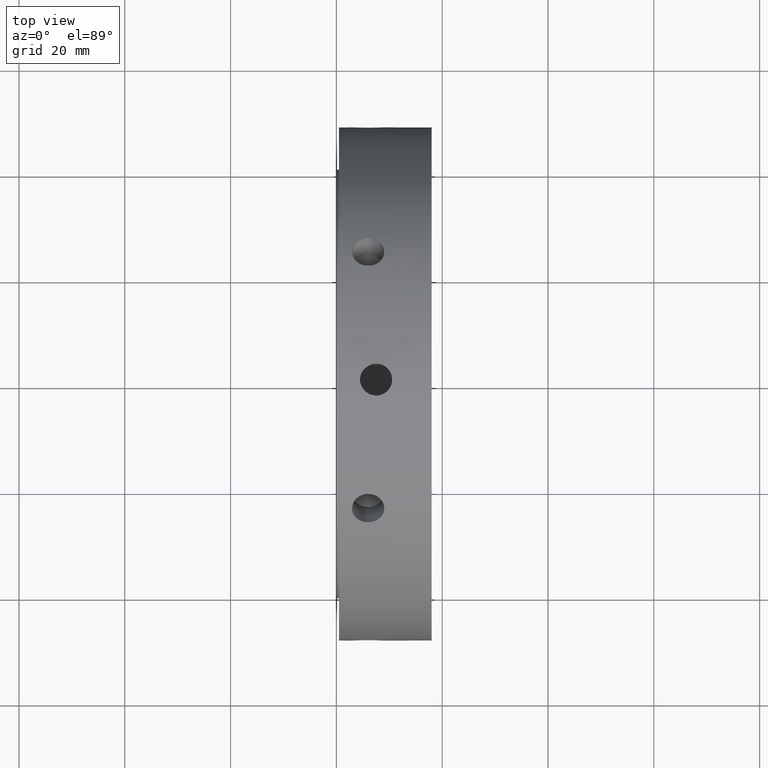
[diagram: clean part render]
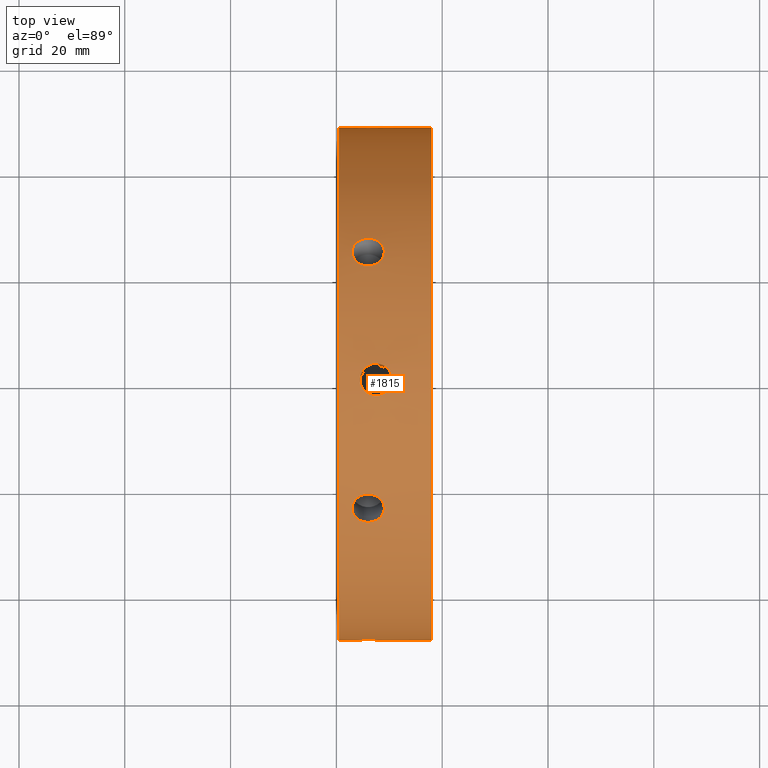
[diagram: same view with one face highlighted and labeled with its STEP entity id]
A machine part, top view. The second image highlights one B-rep face of the part: STEP entity #1815.
In plain terms, the highlighted cylindrical surface (bore or boss wall) has radius 48.5 mm, axis along (1, 0, 0).
Its self-contained STEP definition (entity closure, byte-faithful):
#534=CARTESIAN_POINT('',(2.94999999999999,24.250000000000046,42.002232083545266));
#535=VERTEX_POINT('',#534);
#536=CARTESIAN_POINT('',(9.04999999999999,24.250000000000043,42.002232083545266));
#537=VERTEX_POINT('',#536);
#538=CARTESIAN_POINT('',(2.94999999999999,24.250000000000036,42.002232083545259));
#539=CARTESIAN_POINT('',(2.94999999999999,24.581751072560817,41.810695512498341));
#540=CARTESIAN_POINT('',(3.026577941669006,24.933053119208232,41.602092551934646));
#541=CARTESIAN_POINT('',(3.337873122273323,25.574762695680938,41.210711660996324));
#542=CARTESIAN_POINT('',(3.57258477041999,25.86530674519242,41.028153164711298));
#543=CARTESIAN_POINT('',(4.114064007653622,26.322190474943483,40.736540523324436));
#544=CARTESIAN_POINT('',(4.456961719330098,26.519036951920292,40.608065545296832));
#545=CARTESIAN_POINT('',(5.208388751582146,26.77956822937724,40.436728770736636));
#546=CARTESIAN_POINT('',(5.616926655132631,26.843378948363458,40.394096185390239));
#547=CARTESIAN_POINT('',(6.383073344867347,26.843378948363458,40.394096185390239));
#548=CARTESIAN_POINT('',(6.791611248417835,26.779568229377237,40.436728770736636));
#549=CARTESIAN_POINT('',(7.543038280669883,26.519036951920288,40.608065545296832));
#550=CARTESIAN_POINT('',(7.885935992346358,26.322190474943483,40.736540523324436));
#551=CARTESIAN_POINT('',(8.427415229579989,25.86530674519242,41.028153164711298));
#552=CARTESIAN_POINT('',(8.66212687772666,25.574762695680938,41.210711660996324));
#553=CARTESIAN_POINT('',(8.973422058330975,24.933053119208232,41.602092551934646));
#554=CARTESIAN_POINT('',(9.049999999999992,24.581751072560817,41.810695512498341));
#555=CARTESIAN_POINT('',(9.04999999999999,24.250000000000028,42.002232083545259));
#556=B_SPLINE_CURVE_WITH_KNOTS('',3,(#538,#539,#540,#541,#542,#543,#544,#545,#546,#547,#548,#549,#550,#551,#552,#553,#554,#555),.UNSPECIFIED.,.F.,.U.,(4,2,2,2,2,2,2,2,4),(0.459687892176714,0.574609834804864,0.689531777433014,0.804453780893222,0.919375784353429,1.034297787813637,1.149219791273844,1.264141733901994,1.379063676530144),.UNSPECIFIED.);
#557=EDGE_CURVE('',#535,#537,#556,.T.);
#559=CARTESIAN_POINT('',(9.04999999999999,24.250000000000036,42.002232083545259));
#560=CARTESIAN_POINT('',(9.049999999999988,23.918248927439258,42.193768654592176));
#561=CARTESIAN_POINT('',(8.973422058330975,23.561942440962753,42.39370367110844));
#562=CARTESIAN_POINT('',(8.66212687772666,22.902141858618023,42.753750020716396));
#563=CARTESIAN_POINT('',(8.427415229579992,22.598769538402756,42.914089300369227));
#564=CARTESIAN_POINT('',(7.885935992346362,22.117783718021528,43.163955896216009));
#565=CARTESIAN_POINT('',(7.543038280669885,21.908097884810573,43.270192456909591));
#566=CARTESIAN_POINT('',(6.791611248417839,21.629450246710469,43.410150774387617));
#567=CARTESIAN_POINT('',(6.383073344867349,21.560623985278387,43.444096185390237));
#568=CARTESIAN_POINT('',(5.999999999999989,21.560623985278387,43.444096185390237));
#569=CARTESIAN_POINT('',(5.616926655132631,21.560623985278387,43.444096185390237));
#570=CARTESIAN_POINT('',(5.208388751582143,21.629450246710469,43.410150774387617));
#571=CARTESIAN_POINT('',(4.456961719330095,21.908097884810573,43.270192456909591));
#572=CARTESIAN_POINT('',(4.114064007653619,22.117783718021535,43.163955896216009));
#573=CARTESIAN_POINT('',(3.572584770419988,22.598769538402756,42.914089300369227));
#574=CARTESIAN_POINT('',(3.33787312227332,22.902141858618023,42.753750020716396));
#575=CARTESIAN_POINT('',(3.026577941669004,23.561942440962753,42.39370367110844));
#576=CARTESIAN_POINT('',(2.94999999999999,23.918248927439258,42.193768654592176));
#577=CARTESIAN_POINT('',(2.94999999999999,24.250000000000039,42.002232083545259));
#578=B_SPLINE_CURVE_WITH_KNOTS('',3,(#559,#560,#561,#562,#563,#564,#565,#566,#567,#568,#569,#570,#571,#572,#573,#574,#575,#576,#577),.UNSPECIFIED.,.F.,.U.,(4,2,2,2,3,2,2,2,4),(1.379063676530144,1.493985619158293,1.608907561786443,1.72382956524665,1.838751568706858,1.953673572167066,2.068595575627273,2.183517518255423,2.298439460883572),.UNSPECIFIED.);
#579=EDGE_CURVE('',#537,#535,#578,.T.);
#646=CARTESIAN_POINT('',(2.94999999999999,48.500000000000014,-3.230749E-014));
#647=VERTEX_POINT('',#646);
#648=CARTESIAN_POINT('',(9.04999999999999,48.500000000000014,-2.664535E-014));
#649=VERTEX_POINT('',#648);
#650=CARTESIAN_POINT('',(2.94999999999999,48.500000000000007,-2.615963E-014));
#651=CARTESIAN_POINT('',(2.94999999999999,48.500000000000007,-0.383073142093859));
#652=CARTESIAN_POINT('',(3.026577941669004,48.494995560170892,-0.79161111917382));
#653=CARTESIAN_POINT('',(3.337873122273319,48.476904554298869,-1.543038359720101));
#654=CARTESIAN_POINT('',(3.572584770419987,48.464076283595091,-1.885936135657965));
#655=CARTESIAN_POINT('',(4.114064007653619,48.439974192964939,-2.427415372891596));
#656=CARTESIAN_POINT('',(4.456961719330096,48.427134836730772,-2.662126911612782));
#657=CARTESIAN_POINT('',(5.208388751582143,48.409018476087631,-2.973422003651018));
#658=CARTESIAN_POINT('',(5.61692665513263,48.404002933641763,-3.050000000000027));
#659=CARTESIAN_POINT('',(6.383073344867347,48.404002933641763,-3.050000000000027));
#660=CARTESIAN_POINT('',(6.791611248417835,48.409018476087631,-2.973422003651018));
#661=CARTESIAN_POINT('',(7.543038280669883,48.427134836730772,-2.662126911612783));
#662=CARTESIAN_POINT('',(7.88593599234636,48.439974192964939,-2.427415372891597));
#663=CARTESIAN_POINT('',(8.427415229579991,48.464076283595091,-1.885936135657965));
#664=CARTESIAN_POINT('',(8.66212687772666,48.476904554298869,-1.543038359720102));
#665=CARTESIAN_POINT('',(8.973422058330975,48.494995560170892,-0.791611119173822));
#666=CARTESIAN_POINT('',(9.04999999999999,48.500000000000007,-0.38307314209386));
#667=CARTESIAN_POINT('',(9.04999999999999,48.500000000000007,-2.726985E-014));
#668=B_SPLINE_CURVE_WITH_KNOTS('',3,(#650,#651,#652,#653,#654,#655,#656,#657,#658,#659,#660,#661,#662,#663,#664,#665,#666,#667),.UNSPECIFIED.,.F.,.U.,(4,2,2,2,2,2,2,2,4),(0.459687892176715,0.574609834804864,0.689531777433014,0.804453780893222,0.919375784353429,1.034297787813637,1.149219791273845,1.264141733901994,1.379063676530144),.UNSPECIFIED.);
#669=EDGE_CURVE('',#647,#649,#668,.T.);
#671=CARTESIAN_POINT('',(9.04999999999999,48.500000000000007,-2.713108E-014));
#672=CARTESIAN_POINT('',(9.04999999999999,48.500000000000007,0.383073142093806));
#673=CARTESIAN_POINT('',(8.973422058330975,48.494995560170892,0.791611119173767));
#674=CARTESIAN_POINT('',(8.66212687772666,48.476904554298869,1.543038359720049));
#675=CARTESIAN_POINT('',(8.427415229579991,48.464076283595091,1.885936135657912));
#676=CARTESIAN_POINT('',(7.88593599234636,48.439974192964939,2.427415372891542));
#677=CARTESIAN_POINT('',(7.543038280669884,48.427134836730787,2.662126911612728));
#678=CARTESIAN_POINT('',(6.791611248417837,48.409018476087638,2.973422003650964));
#679=CARTESIAN_POINT('',(6.383073344867349,48.404002933641763,3.049999999999973));
#680=CARTESIAN_POINT('',(5.999999999999989,48.404002933641763,3.049999999999973));
#681=CARTESIAN_POINT('',(5.61692665513263,48.404002933641763,3.049999999999973));
#682=CARTESIAN_POINT('',(5.208388751582143,48.409018476087638,2.973422003650963));
#683=CARTESIAN_POINT('',(4.456961719330097,48.427134836730787,2.662126911612728));
#684=CARTESIAN_POINT('',(4.114064007653621,48.439974192964939,2.427415372891544));
#685=CARTESIAN_POINT('',(3.572584770419989,48.464076283595091,1.885936135657913));
#686=CARTESIAN_POINT('',(3.33787312227332,48.476904554298869,1.543038359720049));
#687=CARTESIAN_POINT('',(3.026577941669004,48.494995560170892,0.791611119173768));
#688=CARTESIAN_POINT('',(2.94999999999999,48.500000000000007,0.383073142093806));
#689=CARTESIAN_POINT('',(2.94999999999999,48.500000000000007,-2.615963E-014));
#690=B_SPLINE_CURVE_WITH_KNOTS('',3,(#671,#672,#673,#674,#675,#676,#677,#678,#679,#680,#681,#682,#683,#684,#685,#686,#687,#688,#689),.UNSPECIFIED.,.F.,.U.,(4,2,2,2,3,2,2,2,4),(1.379063676530144,1.493985619158294,1.608907561786444,1.723829565246651,1.838751568706859,1.953673572167067,2.068595575627274,2.183517518255424,2.298439460883574),.UNSPECIFIED.);
#691=EDGE_CURVE('',#649,#647,#690,.T.);
#758=CARTESIAN_POINT('',(2.94999999999999,24.249999999999993,-42.002232083545294));
#759=VERTEX_POINT('',#758);
#760=CARTESIAN_POINT('',(9.04999999999999,24.25,-42.002232083545294));
#761=VERTEX_POINT('',#760);
#762=CARTESIAN_POINT('',(2.94999999999999,24.249999999999993,-42.002232083545287));
#763=CARTESIAN_POINT('',(2.94999999999999,23.918248927439201,-42.193768654592205));
#764=CARTESIAN_POINT('',(3.026577941669004,23.561942440962696,-42.393703671108469));
#765=CARTESIAN_POINT('',(3.337873122273316,22.902141858617973,-42.753750020716417));
#766=CARTESIAN_POINT('',(3.572584770419989,22.59876953840271,-42.914089300369263));
#767=CARTESIAN_POINT('',(4.114064007653619,22.117783718021485,-43.163955896216038));
#768=CARTESIAN_POINT('',(4.456961719330095,21.908097884810523,-43.270192456909612));
#769=CARTESIAN_POINT('',(5.20838875158214,21.629450246710423,-43.410150774387631));
#770=CARTESIAN_POINT('',(5.61692665513263,21.560623985278333,-43.444096185390265));
#771=CARTESIAN_POINT('',(6.383073344867349,21.560623985278333,-43.444096185390265));
#772=CARTESIAN_POINT('',(6.791611248417837,21.629450246710423,-43.410150774387631));
#773=CARTESIAN_POINT('',(7.543038280669884,21.908097884810523,-43.270192456909612));
#774=CARTESIAN_POINT('',(7.885935992346361,22.117783718021485,-43.163955896216038));
#775=CARTESIAN_POINT('',(8.427415229579991,22.59876953840271,-42.914089300369263));
#776=CARTESIAN_POINT('',(8.662126877726662,22.902141858617973,-42.753750020716417));
#777=CARTESIAN_POINT('',(8.973422058330975,23.561942440962696,-42.393703671108469));
#778=CARTESIAN_POINT('',(9.04999999999999,23.918248927439198,-42.193768654592205));
#779=CARTESIAN_POINT('',(9.04999999999999,24.249999999999986,-42.002232083545287));
#780=B_SPLINE_CURVE_WITH_KNOTS('',3,(#762,#763,#764,#765,#766,#767,#768,#769,#770,#771,#772,#773,#774,#775,#776,#777,#778,#779),.UNSPECIFIED.,.F.,.U.,(4,2,2,2,2,2,2,2,4),(0.459687892176714,0.574609834804864,0.689531777433013,0.804453780893221,0.919375784353429,1.034297787813637,1.149219791273844,1.264141733901994,1.379063676530143),.UNSPECIFIED.);
#781=EDGE_CURVE('',#759,#761,#780,.T.);
#783=CARTESIAN_POINT('',(9.04999999999999,24.249999999999989,-42.002232083545287));
#784=CARTESIAN_POINT('',(9.04999999999999,24.581751072560778,-41.81069551249837));
#785=CARTESIAN_POINT('',(8.973422058330977,24.933053119208168,-41.60209255193466));
#786=CARTESIAN_POINT('',(8.662126877726662,25.574762695680878,-41.210711660996338));
#787=CARTESIAN_POINT('',(8.427415229579991,25.865306745192367,-41.028153164711313));
#788=CARTESIAN_POINT('',(7.885935992346359,26.322190474943433,-40.736540523324472));
#789=CARTESIAN_POINT('',(7.543038280669881,26.519036951920235,-40.608065545296846));
#790=CARTESIAN_POINT('',(6.791611248417835,26.779568229377183,-40.43672877073665));
#791=CARTESIAN_POINT('',(6.383073344867349,26.843378948363412,-40.394096185390268));
#792=CARTESIAN_POINT('',(5.999999999999989,26.843378948363412,-40.394096185390268));
#793=CARTESIAN_POINT('',(5.61692665513263,26.843378948363412,-40.394096185390268));
#794=CARTESIAN_POINT('',(5.208388751582143,26.779568229377183,-40.43672877073665));
#795=CARTESIAN_POINT('',(4.456961719330096,26.519036951920235,-40.608065545296846));
#796=CARTESIAN_POINT('',(4.114064007653621,26.322190474943426,-40.736540523324472));
#797=CARTESIAN_POINT('',(3.57258477041999,25.865306745192363,-41.028153164711327));
#798=CARTESIAN_POINT('',(3.337873122273314,25.574762695680882,-41.210711660996353));
#799=CARTESIAN_POINT('',(3.026577941669002,24.933053119208171,-41.602092551934675));
#800=CARTESIAN_POINT('',(2.94999999999999,24.581751072560778,-41.810695512498356));
#801=CARTESIAN_POINT('',(2.94999999999999,24.249999999999993,-42.00223208354528));
#802=B_SPLINE_CURVE_WITH_KNOTS('',3,(#783,#784,#785,#786,#787,#788,#789,#790,#791,#792,#793,#794,#795,#796,#797,#798,#799,#800,#801),.UNSPECIFIED.,.F.,.U.,(4,2,2,2,3,2,2,2,4),(1.379063676530143,1.493985619158293,1.608907561786443,1.72382956524665,1.838751568706858,1.953673572167066,2.068595575627274,2.183517518255423,2.298439460883572),.UNSPECIFIED.);
#803=EDGE_CURVE('',#761,#759,#802,.T.);
#870=CARTESIAN_POINT('',(2.94999999999999,-24.250000000000025,-42.00223208354528));
#871=VERTEX_POINT('',#870);
#872=CARTESIAN_POINT('',(9.04999999999999,-24.250000000000021,-42.00223208354528));
#873=VERTEX_POINT('',#872);
#874=CARTESIAN_POINT('',(2.94999999999999,-24.250000000000014,-42.002232083545266));
#875=CARTESIAN_POINT('',(2.94999999999999,-24.581751072560802,-41.810695512498349));
#876=CARTESIAN_POINT('',(3.026577941669007,-24.933053119208203,-41.602092551934646));
#877=CARTESIAN_POINT('',(3.337873122273323,-25.57476269568091,-41.210711660996324));
#878=CARTESIAN_POINT('',(3.57258477041999,-25.865306745192392,-41.028153164711298));
#879=CARTESIAN_POINT('',(4.114064007653622,-26.322190474943458,-40.73654052332445));
#880=CARTESIAN_POINT('',(4.456961719330097,-26.51903695192026,-40.608065545296839));
#881=CARTESIAN_POINT('',(5.208388751582146,-26.779568229377212,-40.436728770736643));
#882=CARTESIAN_POINT('',(5.61692665513263,-26.843378948363437,-40.394096185390246));
#883=CARTESIAN_POINT('',(6.383073344867349,-26.843378948363437,-40.394096185390246));
#884=CARTESIAN_POINT('',(6.791611248417833,-26.779568229377212,-40.436728770736643));
#885=CARTESIAN_POINT('',(7.54303828066988,-26.51903695192026,-40.608065545296839));
#886=CARTESIAN_POINT('',(7.885935992346357,-26.322190474943458,-40.73654052332445));
#887=CARTESIAN_POINT('',(8.427415229579989,-25.865306745192392,-41.028153164711298));
#888=CARTESIAN_POINT('',(8.66212687772666,-25.574762695680914,-41.210711660996331));
#889=CARTESIAN_POINT('',(8.973422058330975,-24.933053119208203,-41.602092551934653));
#890=CARTESIAN_POINT('',(9.04999999999999,-24.581751072560802,-41.810695512498356));
#891=CARTESIAN_POINT('',(9.04999999999999,-24.250000000000014,-42.00223208354528));
#892=B_SPLINE_CURVE_WITH_KNOTS('',3,(#874,#875,#876,#877,#878,#879,#880,#881,#882,#883,#884,#885,#886,#887,#888,#889,#890,#891),.UNSPECIFIED.,.F.,.U.,(4,2,2,2,2,2,2,2,4),(0.459687892176715,0.574609834804865,0.689531777433015,0.804453780893222,0.91937578435343,1.034297787813638,1.149219791273845,1.264141733901995,1.379063676530145),.UNSPECIFIED.);
#893=EDGE_CURVE('',#871,#873,#892,.T.);
#895=CARTESIAN_POINT('',(9.04999999999999,-24.250000000000014,-42.002232083545266));
#896=CARTESIAN_POINT('',(9.04999999999999,-23.91824892743923,-42.193768654592184));
#897=CARTESIAN_POINT('',(8.973422058330971,-23.561942440962721,-42.393703671108447));
#898=CARTESIAN_POINT('',(8.662126877726658,-22.902141858617998,-42.753750020716403));
#899=CARTESIAN_POINT('',(8.427415229579992,-22.598769538402735,-42.914089300369241));
#900=CARTESIAN_POINT('',(7.88593599234636,-22.117783718021506,-43.163955896216031));
#901=CARTESIAN_POINT('',(7.543038280669881,-21.908097884810548,-43.270192456909612));
#902=CARTESIAN_POINT('',(6.791611248417836,-21.629450246710448,-43.410150774387631));
#903=CARTESIAN_POINT('',(6.383073344867349,-21.560623985278355,-43.444096185390251));
#904=CARTESIAN_POINT('',(5.999999999999989,-21.560623985278355,-43.444096185390251));
#905=CARTESIAN_POINT('',(5.616926655132631,-21.560623985278355,-43.444096185390251));
#906=CARTESIAN_POINT('',(5.208388751582146,-21.629450246710448,-43.410150774387631));
#907=CARTESIAN_POINT('',(4.456961719330097,-21.908097884810548,-43.270192456909612));
#908=CARTESIAN_POINT('',(4.114064007653621,-22.117783718021506,-43.163955896216031));
#909=CARTESIAN_POINT('',(3.572584770419989,-22.598769538402735,-42.914089300369241));
#910=CARTESIAN_POINT('',(3.33787312227332,-22.902141858617998,-42.753750020716403));
#911=CARTESIAN_POINT('',(3.026577941669007,-23.561942440962721,-42.393703671108447));
#912=CARTESIAN_POINT('',(2.94999999999999,-23.91824892743923,-42.193768654592184));
#913=CARTESIAN_POINT('',(2.94999999999999,-24.250000000000014,-42.002232083545266));
#914=B_SPLINE_CURVE_WITH_KNOTS('',3,(#895,#896,#897,#898,#899,#900,#901,#902,#903,#904,#905,#906,#907,#908,#909,#910,#911,#912,#913),.UNSPECIFIED.,.F.,.U.,(4,2,2,2,3,2,2,2,4),(1.379063676530145,1.493985619158295,1.608907561786444,1.723829565246652,1.83875156870686,1.953673572167067,2.068595575627275,2.183517518255425,2.298439460883575),.UNSPECIFIED.);
#915=EDGE_CURVE('',#873,#871,#914,.T.);
#982=CARTESIAN_POINT('',(2.94999999999999,-48.500000000000014,1.346145E-014));
#983=VERTEX_POINT('',#982);
#984=CARTESIAN_POINT('',(9.04999999999999,-48.500000000000014,8.881784E-015));
#985=VERTEX_POINT('',#984);
#986=CARTESIAN_POINT('',(2.94999999999999,-48.500000000000007,9.298118E-015));
#987=CARTESIAN_POINT('',(2.94999999999999,-48.500000000000007,0.383073142093842));
#988=CARTESIAN_POINT('',(3.026577941669004,-48.494995560170892,0.791611119173803));
#989=CARTESIAN_POINT('',(3.337873122273319,-48.476904554298869,1.543038359720084));
#990=CARTESIAN_POINT('',(3.572584770419987,-48.464076283595091,1.885936135657948));
#991=CARTESIAN_POINT('',(4.114064007653619,-48.439974192964939,2.427415372891579));
#992=CARTESIAN_POINT('',(4.456961719330096,-48.427134836730772,2.662126911612765));
#993=CARTESIAN_POINT('',(5.208388751582143,-48.409018476087631,2.973422003651));
#994=CARTESIAN_POINT('',(5.61692665513263,-48.404002933641763,3.05000000000001));
#995=CARTESIAN_POINT('',(6.383073344867349,-48.404002933641763,3.05000000000001));
#996=CARTESIAN_POINT('',(6.791611248417836,-48.409018476087631,2.973422003651));
#997=CARTESIAN_POINT('',(7.543038280669881,-48.427134836730772,2.662126911612766));
#998=CARTESIAN_POINT('',(7.88593599234636,-48.439974192964939,2.42741537289158));
#999=CARTESIAN_POINT('',(8.427415229579991,-48.464076283595091,1.885936135657948));
#1000=CARTESIAN_POINT('',(8.66212687772666,-48.476904554298869,1.543038359720085));
#1001=CARTESIAN_POINT('',(8.973422058330975,-48.494995560170892,0.791611119173803));
#1002=CARTESIAN_POINT('',(9.04999999999999,-48.500000000000007,0.383073142093842));
#1003=CARTESIAN_POINT('',(9.04999999999999,-48.500000000000007,1.040834E-014));
#1004=B_SPLINE_CURVE_WITH_KNOTS('',3,(#986,#987,#988,#989,#990,#991,#992,#993,#994,#995,#996,#997,#998,#999,#1000,#1001,#1002,#1003),.UNSPECIFIED.,.F.,.U.,(4,2,2,2,2,2,2,2,4),(0.459687892176715,0.574609834804864,0.689531777433014,0.804453780893222,0.91937578435343,1.034297787813637,1.149219791273845,1.264141733901995,1.379063676530144),.UNSPECIFIED.);
#1005=EDGE_CURVE('',#983,#985,#1004,.T.);
#1007=CARTESIAN_POINT('',(9.04999999999999,-48.500000000000007,1.054712E-014));
#1008=CARTESIAN_POINT('',(9.04999999999999,-48.500000000000007,-0.383073142093822));
#1009=CARTESIAN_POINT('',(8.973422058330975,-48.494995560170892,-0.791611119173784));
#1010=CARTESIAN_POINT('',(8.66212687772666,-48.476904554298869,-1.543038359720065));
#1011=CARTESIAN_POINT('',(8.427415229579991,-48.464076283595091,-1.885936135657928));
#1012=CARTESIAN_POINT('',(7.88593599234636,-48.439974192964939,-2.427415372891559));
#1013=CARTESIAN_POINT('',(7.543038280669884,-48.427134836730772,-2.662126911612746));
#1014=CARTESIAN_POINT('',(6.791611248417837,-48.409018476087631,-2.973422003650982));
#1015=CARTESIAN_POINT('',(6.383073344867349,-48.404002933641763,-3.04999999999999));
#1016=CARTESIAN_POINT('',(5.999999999999989,-48.404002933641763,-3.04999999999999));
#1017=CARTESIAN_POINT('',(5.61692665513263,-48.404002933641763,-3.04999999999999));
#1018=CARTESIAN_POINT('',(5.208388751582143,-48.409018476087631,-2.973422003650981));
#1019=CARTESIAN_POINT('',(4.456961719330097,-48.427134836730772,-2.662126911612746));
#1020=CARTESIAN_POINT('',(4.114064007653621,-48.439974192964939,-2.42741537289156));
#1021=CARTESIAN_POINT('',(3.572584770419989,-48.464076283595091,-1.885936135657929));
#1022=CARTESIAN_POINT('',(3.33787312227332,-48.476904554298869,-1.543038359720065));
#1023=CARTESIAN_POINT('',(3.026577941669004,-48.494995560170892,-0.791611119173785));
#1024=CARTESIAN_POINT('',(2.94999999999999,-48.500000000000007,-0.383073142093823));
#1025=CARTESIAN_POINT('',(2.94999999999999,-48.500000000000007,9.298118E-015));
#1026=B_SPLINE_CURVE_WITH_KNOTS('',3,(#1007,#1008,#1009,#1010,#1011,#1012,#1013,#1014,#1015,#1016,#1017,#1018,#1019,#1020,#1021,#1022,#1023,#1024,#1025),.UNSPECIFIED.,.F.,.U.,(4,2,2,2,3,2,2,2,4),(1.379063676530144,1.493985619158294,1.608907561786444,1.723829565246652,1.838751568706859,1.953673572167067,2.068595575627275,2.183517518255425,2.298439460883574),.UNSPECIFIED.);
#1027=EDGE_CURVE('',#985,#983,#1026,.T.);
#1131=CARTESIAN_POINT('',(2.94999999999999,-24.250000000000004,42.002232083545287));
#1132=VERTEX_POINT('',#1131);
#1133=CARTESIAN_POINT('',(9.04999999999999,-24.250000000000004,42.002232083545287));
#1134=VERTEX_POINT('',#1133);
#1135=CARTESIAN_POINT('',(2.94999999999999,-24.25,42.002232083545287));
#1136=CARTESIAN_POINT('',(2.94999999999999,-23.918248927439208,42.193768654592205));
#1137=CARTESIAN_POINT('',(3.026577941669006,-23.561942440962707,42.393703671108455));
#1138=CARTESIAN_POINT('',(3.337873122273318,-22.902141858617981,42.75375002071641));
#1139=CARTESIAN_POINT('',(3.572584770419989,-22.598769538402721,42.914089300369263));
#1140=CARTESIAN_POINT('',(4.114064007653619,-22.117783718021499,43.163955896216038));
#1141=CARTESIAN_POINT('',(4.456961719330094,-21.90809788481053,43.270192456909612));
#1142=CARTESIAN_POINT('',(5.208388751582143,-21.62945024671043,43.410150774387631));
#1143=CARTESIAN_POINT('',(5.61692665513263,-21.560623985278337,43.444096185390258));
#1144=CARTESIAN_POINT('',(6.383073344867349,-21.560623985278337,43.444096185390258));
#1145=CARTESIAN_POINT('',(6.791611248417837,-21.62945024671043,43.410150774387631));
#1146=CARTESIAN_POINT('',(7.543038280669883,-21.90809788481053,43.270192456909612));
#1147=CARTESIAN_POINT('',(7.885935992346358,-22.117783718021489,43.163955896216038));
#1148=CARTESIAN_POINT('',(8.427415229579989,-22.598769538402721,42.914089300369263));
#1149=CARTESIAN_POINT('',(8.662126877726665,-22.902141858617988,42.75375002071641));
#1150=CARTESIAN_POINT('',(8.973422058330977,-23.561942440962707,42.393703671108455));
#1151=CARTESIAN_POINT('',(9.04999999999999,-23.918248927439208,42.193768654592205));
#1152=CARTESIAN_POINT('',(9.04999999999999,-24.249999999999993,42.002232083545287));
#1153=B_SPLINE_CURVE_WITH_KNOTS('',3,(#1135,#1136,#1137,#1138,#1139,#1140,#1141,#1142,#1143,#1144,#1145,#1146,#1147,#1148,#1149,#1150,#1151,#1152),.UNSPECIFIED.,.F.,.U.,(4,2,2,2,2,2,2,2,4),(0.459687892176715,0.574609834804864,0.689531777433014,0.804453780893222,0.919375784353429,1.034297787813637,1.149219791273844,1.264141733901994,1.379063676530144),.UNSPECIFIED.);
#1154=EDGE_CURVE('',#1132,#1134,#1153,.T.);
#1156=CARTESIAN_POINT('',(9.04999999999999,-24.249999999999993,42.002232083545287));
#1157=CARTESIAN_POINT('',(9.04999999999999,-24.581751072560781,41.81069551249837));
#1158=CARTESIAN_POINT('',(8.973422058330975,-24.933053119208175,41.60209255193466));
#1159=CARTESIAN_POINT('',(8.662126877726662,-25.574762695680885,41.210711660996338));
#1160=CARTESIAN_POINT('',(8.427415229579992,-25.865306745192377,41.028153164711313));
#1161=CARTESIAN_POINT('',(7.88593599234636,-26.322190474943437,40.73654052332445));
#1162=CARTESIAN_POINT('',(7.543038280669884,-26.519036951920238,40.608065545296846));
#1163=CARTESIAN_POINT('',(6.791611248417838,-26.77956822937719,40.436728770736643));
#1164=CARTESIAN_POINT('',(6.383073344867349,-26.843378948363416,40.394096185390261));
#1165=CARTESIAN_POINT('',(5.999999999999989,-26.843378948363416,40.394096185390261));
#1166=CARTESIAN_POINT('',(5.61692665513263,-26.843378948363416,40.394096185390261));
#1167=CARTESIAN_POINT('',(5.208388751582143,-26.779568229377194,40.43672877073665));
#1168=CARTESIAN_POINT('',(4.456961719330097,-26.519036951920242,40.608065545296846));
#1169=CARTESIAN_POINT('',(4.11406400765362,-26.322190474943437,40.73654052332445));
#1170=CARTESIAN_POINT('',(3.572584770419989,-25.86530674519237,41.028153164711306));
#1171=CARTESIAN_POINT('',(3.33787312227332,-25.574762695680899,41.210711660996331));
#1172=CARTESIAN_POINT('',(3.026577941669006,-24.933053119208189,41.602092551934653));
#1173=CARTESIAN_POINT('',(2.94999999999999,-24.581751072560781,41.810695512498356));
#1174=CARTESIAN_POINT('',(2.94999999999999,-24.25,42.00223208354528));
#1175=B_SPLINE_CURVE_WITH_KNOTS('',3,(#1156,#1157,#1158,#1159,#1160,#1161,#1162,#1163,#1164,#1165,#1166,#1167,#1168,#1169,#1170,#1171,#1172,#1173,#1174),.UNSPECIFIED.,.F.,.U.,(4,2,2,2,3,2,2,2,4),(1.379063676530144,1.493985619158294,1.608907561786444,1.723829565246651,1.838751568706859,1.953673572167066,2.068595575627274,2.183517518255424,2.298439460883574),.UNSPECIFIED.);
#1176=EDGE_CURVE('',#1134,#1132,#1175,.T.);
#1255=CARTESIAN_POINT('',(7.499999999999987,43.444096185390251,-21.560623985278369));
#1256=VERTEX_POINT('',#1255);
#1257=CARTESIAN_POINT('',(7.499999999999986,43.444096185390251,-21.560623985278351));
#1258=CARTESIAN_POINT('',(7.116926655132627,43.444096185390251,-21.560623985278351));
#1259=CARTESIAN_POINT('',(6.708388751582143,43.410150774387631,-21.62945024671043));
#1260=CARTESIAN_POINT('',(5.956961719330095,43.270192456909612,-21.90809788481053));
#1261=CARTESIAN_POINT('',(5.614064007653619,43.163955896216031,-22.117783718021499));
#1262=CARTESIAN_POINT('',(5.072584770419988,42.914089300369241,-22.598769538402721));
#1263=CARTESIAN_POINT('',(4.837873122273317,42.75375002071641,-22.902141858617988));
#1264=CARTESIAN_POINT('',(4.526577941669002,42.393703671108455,-23.561942440962717));
#1265=CARTESIAN_POINT('',(4.449999999999987,42.193768654592191,-23.918248927439222));
#1266=CARTESIAN_POINT('',(4.449999999999985,41.810695512498356,-24.581751072560785));
#1267=CARTESIAN_POINT('',(4.526577941669,41.602092551934675,-24.933053119208179));
#1268=CARTESIAN_POINT('',(4.837873122273311,41.210711660996353,-25.574762695680889));
#1269=CARTESIAN_POINT('',(5.072584770419983,41.028153164711313,-25.865306745192377));
#1270=CARTESIAN_POINT('',(5.614064007653616,40.73654052332445,-26.322190474943447));
#1271=CARTESIAN_POINT('',(5.956961719330093,40.608065545296846,-26.519036951920253));
#1272=CARTESIAN_POINT('',(6.70838875158214,40.43672877073665,-26.779568229377201));
#1273=CARTESIAN_POINT('',(7.116926655132627,40.394096185390254,-26.843378948363426));
#1274=CARTESIAN_POINT('',(7.883073344867347,40.394096185390254,-26.843378948363423));
#1275=CARTESIAN_POINT('',(8.29161124841783,40.436728770736643,-26.779568229377201));
#1276=CARTESIAN_POINT('',(9.04303828066988,40.608065545296846,-26.519036951920253));
#1277=CARTESIAN_POINT('',(9.385935992346358,40.73654052332445,-26.32219047494344));
#1278=CARTESIAN_POINT('',(9.927415229579989,41.028153164711313,-25.865306745192377));
#1279=CARTESIAN_POINT('',(10.162126877726664,41.210711660996353,-25.574762695680896));
#1280=CARTESIAN_POINT('',(10.473422058330977,41.602092551934675,-24.933053119208179));
#1281=CARTESIAN_POINT('',(10.549999999999988,41.810695512498356,-24.581751072560785));
#1282=CARTESIAN_POINT('',(10.549999999999983,42.193768654592191,-23.918248927439222));
#1283=CARTESIAN_POINT('',(10.47342205833097,42.393703671108455,-23.561942440962717));
#1284=CARTESIAN_POINT('',(10.162126877726656,42.75375002071641,-22.902141858617988));
#1285=CARTESIAN_POINT('',(9.927415229579987,42.914089300369241,-22.598769538402721));
#1286=CARTESIAN_POINT('',(9.385935992346358,43.163955896216031,-22.117783718021492));
#1287=CARTESIAN_POINT('',(9.043038280669878,43.270192456909612,-21.908097884810537));
#1288=CARTESIAN_POINT('',(8.29161124841783,43.410150774387631,-21.629450246710434));
#1289=CARTESIAN_POINT('',(7.883073344867347,43.444096185390251,-21.560623985278351));
#1290=CARTESIAN_POINT('',(7.499999999999987,43.444096185390251,-21.560623985278351));
#1291=B_SPLINE_CURVE_WITH_KNOTS('',3,(#1257,#1258,#1259,#1260,#1261,#1262,#1263,#1264,#1265,#1266,#1267,#1268,#1269,#1270,#1271,#1272,#1273,#1274,#1275,#1276,#1277,#1278,#1279,#1280,#1281,#1282,#1283,#1284,#1285,#1286,#1287,#1288,#1289,#1290),.UNSPECIFIED.,.T.,.U.,(4,2,2,2,2,2,2,2,2,2,2,2,2,2,2,2,4),(0.0,0.114922003460208,0.229844006920415,0.344765949548565,0.459687892176714,0.574609834804864,0.689531777433014,0.804453780893222,0.91937578435343,1.034297787813638,1.149219791273846,1.264141733901995,1.379063676530145,1.493985619158294,1.608907561786444,1.723829565246652,1.838751568706859),.UNSPECIFIED.);
#1292=EDGE_CURVE('',#1256,#1256,#1291,.T.);
#1412=CARTESIAN_POINT('',(7.499999999999987,-40.394096185390268,-26.843378948363412));
#1413=VERTEX_POINT('',#1412);
#1414=CARTESIAN_POINT('',(7.499999999999987,-40.394096185390261,-26.843378948363409));
#1415=CARTESIAN_POINT('',(7.116926655132627,-40.394096185390261,-26.843378948363409));
#1416=CARTESIAN_POINT('',(6.708388751582137,-40.436728770736664,-26.77956822937719));
#1417=CARTESIAN_POINT('',(5.956961719330089,-40.608065545296874,-26.519036951920238));
#1418=CARTESIAN_POINT('',(5.614064007653617,-40.736540523324472,-26.322190474943426));
#1419=CARTESIAN_POINT('',(5.072584770419987,-41.028153164711313,-25.865306745192356));
#1420=CARTESIAN_POINT('',(4.837873122273314,-41.210711660996338,-25.574762695680882));
#1421=CARTESIAN_POINT('',(4.526577941669002,-41.60209255193466,-24.933053119208175));
#1422=CARTESIAN_POINT('',(4.449999999999986,-41.81069551249837,-24.581751072560778));
#1423=CARTESIAN_POINT('',(4.449999999999986,-42.193768654592205,-23.918248927439201));
#1424=CARTESIAN_POINT('',(4.526577941669004,-42.393703671108455,-23.561942440962696));
#1425=CARTESIAN_POINT('',(4.837873122273314,-42.75375002071641,-22.902141858617977));
#1426=CARTESIAN_POINT('',(5.072584770419986,-42.914089300369241,-22.59876953840271));
#1427=CARTESIAN_POINT('',(5.614064007653616,-43.163955896216031,-22.117783718021478));
#1428=CARTESIAN_POINT('',(5.95696171933009,-43.270192456909619,-21.908097884810527));
#1429=CARTESIAN_POINT('',(6.708388751582138,-43.410150774387645,-21.629450246710427));
#1430=CARTESIAN_POINT('',(7.116926655132627,-43.444096185390258,-21.56062398527833));
#1431=CARTESIAN_POINT('',(7.883073344867347,-43.444096185390258,-21.56062398527833));
#1432=CARTESIAN_POINT('',(8.291611248417835,-43.410150774387645,-21.629450246710427));
#1433=CARTESIAN_POINT('',(9.043038280669883,-43.270192456909619,-21.908097884810527));
#1434=CARTESIAN_POINT('',(9.385935992346358,-43.163955896216031,-22.117783718021478));
#1435=CARTESIAN_POINT('',(9.927415229579989,-42.914089300369241,-22.59876953840271));
#1436=CARTESIAN_POINT('',(10.16212687772666,-42.753750020716417,-22.902141858617977));
#1437=CARTESIAN_POINT('',(10.473422058330971,-42.393703671108469,-23.561942440962696));
#1438=CARTESIAN_POINT('',(10.549999999999986,-42.193768654592205,-23.918248927439201));
#1439=CARTESIAN_POINT('',(10.549999999999986,-41.81069551249837,-24.581751072560778));
#1440=CARTESIAN_POINT('',(10.473422058330971,-41.60209255193466,-24.933053119208175));
#1441=CARTESIAN_POINT('',(10.162126877726658,-41.210711660996338,-25.574762695680882));
#1442=CARTESIAN_POINT('',(9.927415229579989,-41.028153164711313,-25.865306745192356));
#1443=CARTESIAN_POINT('',(9.385935992346358,-40.736540523324472,-26.322190474943426));
#1444=CARTESIAN_POINT('',(9.043038280669883,-40.608065545296874,-26.519036951920238));
#1445=CARTESIAN_POINT('',(8.291611248417835,-40.436728770736664,-26.779568229377194));
#1446=CARTESIAN_POINT('',(7.883073344867347,-40.394096185390261,-26.843378948363409));
#1447=CARTESIAN_POINT('',(7.499999999999987,-40.394096185390261,-26.843378948363409));
#1448=B_SPLINE_CURVE_WITH_KNOTS('',3,(#1414,#1415,#1416,#1417,#1418,#1419,#1420,#1421,#1422,#1423,#1424,#1425,#1426,#1427,#1428,#1429,#1430,#1431,#1432,#1433,#1434,#1435,#1436,#1437,#1438,#1439,#1440,#1441,#1442,#1443,#1444,#1445,#1446,#1447),.UNSPECIFIED.,.T.,.U.,(4,2,2,2,2,2,2,2,2,2,2,2,2,2,2,2,4),(0.0,0.114922003460208,0.229844006920416,0.344765949548565,0.459687892176714,0.574609834804864,0.689531777433013,0.804453780893221,0.919375784353429,1.034297787813637,1.149219791273845,1.264141733901994,1.379063676530143,1.493985619158293,1.608907561786442,1.72382956524665,1.838751568706858),.UNSPECIFIED.);
#1449=EDGE_CURVE('',#1413,#1413,#1448,.T.);
#1569=CARTESIAN_POINT('',(7.499999999999987,-3.05,48.404002933641763));
#1570=VERTEX_POINT('',#1569);
#1571=CARTESIAN_POINT('',(7.499999999999987,-3.05,48.404002933641756));
#1572=CARTESIAN_POINT('',(7.116926655132629,-3.05,48.404002933641756));
#1573=CARTESIAN_POINT('',(6.708388751582142,-2.973422003650991,48.409018476087631));
#1574=CARTESIAN_POINT('',(5.956961719330094,-2.662126911612756,48.427134836730772));
#1575=CARTESIAN_POINT('',(5.614064007653616,-2.42741537289157,48.439974192964939));
#1576=CARTESIAN_POINT('',(5.072584770419986,-1.885936135657939,48.464076283595091));
#1577=CARTESIAN_POINT('',(4.837873122273316,-1.543038359720075,48.476904554298869));
#1578=CARTESIAN_POINT('',(4.526577941669001,-0.791611119173794,48.494995560170892));
#1579=CARTESIAN_POINT('',(4.449999999999987,-0.383073142093833,48.500000000000007));
#1580=CARTESIAN_POINT('',(4.449999999999987,0.383073142093832,48.500000000000007));
#1581=CARTESIAN_POINT('',(4.526577941669001,0.791611119173794,48.494995560170892));
#1582=CARTESIAN_POINT('',(4.837873122273316,1.543038359720075,48.476904554298869));
#1583=CARTESIAN_POINT('',(5.072584770419986,1.885936135657938,48.464076283595091));
#1584=CARTESIAN_POINT('',(5.614064007653616,2.42741537289157,48.439974192964939));
#1585=CARTESIAN_POINT('',(5.956961719330093,2.662126911612755,48.427134836730772));
#1586=CARTESIAN_POINT('',(6.708388751582138,2.97342200365099,48.409018476087631));
#1587=CARTESIAN_POINT('',(7.116926655132627,3.05,48.404002933641763));
#1588=CARTESIAN_POINT('',(7.883073344867345,3.05,48.404002933641763));
#1589=CARTESIAN_POINT('',(8.291611248417832,2.973422003650991,48.409018476087631));
#1590=CARTESIAN_POINT('',(9.04303828066988,2.662126911612756,48.427134836730772));
#1591=CARTESIAN_POINT('',(9.385935992346358,2.42741537289157,48.439974192964939));
#1592=CARTESIAN_POINT('',(9.927415229579987,1.885936135657939,48.464076283595091));
#1593=CARTESIAN_POINT('',(10.162126877726658,1.543038359720076,48.476904554298869));
#1594=CARTESIAN_POINT('',(10.473422058330971,0.791611119173796,48.494995560170892));
#1595=CARTESIAN_POINT('',(10.549999999999983,0.383073142093833,48.500000000000007));
#1596=CARTESIAN_POINT('',(10.549999999999986,-0.383073142093832,48.500000000000007));
#1597=CARTESIAN_POINT('',(10.473422058330971,-0.791611119173795,48.494995560170892));
#1598=CARTESIAN_POINT('',(10.162126877726658,-1.543038359720076,48.476904554298869));
#1599=CARTESIAN_POINT('',(9.927415229579989,-1.885936135657938,48.464076283595091));
#1600=CARTESIAN_POINT('',(9.385935992346358,-2.427415372891569,48.439974192964939));
#1601=CARTESIAN_POINT('',(9.043038280669881,-2.662126911612755,48.427134836730772));
#1602=CARTESIAN_POINT('',(8.291611248417834,-2.973422003650991,48.409018476087631));
#1603=CARTESIAN_POINT('',(7.883073344867348,-3.05,48.404002933641756));
#1604=CARTESIAN_POINT('',(7.499999999999988,-3.05,48.404002933641756));
#1605=B_SPLINE_CURVE_WITH_KNOTS('',3,(#1571,#1572,#1573,#1574,#1575,#1576,#1577,#1578,#1579,#1580,#1581,#1582,#1583,#1584,#1585,#1586,#1587,#1588,#1589,#1590,#1591,#1592,#1593,#1594,#1595,#1596,#1597,#1598,#1599,#1600,#1601,#1602,#1603,#1604),.UNSPECIFIED.,.T.,.U.,(4,2,2,2,2,2,2,2,2,2,2,2,2,2,2,2,4),(0.0,0.114922003460208,0.229844006920415,0.344765949548565,0.459687892176715,0.574609834804864,0.689531777433014,0.804453780893222,0.919375784353429,1.034297787813637,1.149219791273845,1.264141733901994,1.379063676530144,1.493985619158294,1.608907561786444,1.723829565246651,1.838751568706859),.UNSPECIFIED.);
#1606=EDGE_CURVE('',#1570,#1570,#1605,.T.);
#1748=CARTESIAN_POINT('',(0.499999999999989,48.500000000000007,0.0));
#1749=VERTEX_POINT('',#1748);
#1750=CARTESIAN_POINT('',(0.499999999999989,0.0,0.0));
#1751=DIRECTION('',(1.0,0.0,0.0));
#1752=DIRECTION('',(0.0,1.0,0.0));
#1753=AXIS2_PLACEMENT_3D('',#1750,#1751,#1752);
#1754=CIRCLE('',#1753,48.500000000000007);
#1755=EDGE_CURVE('',#1749,#1749,#1754,.T.);
#1763=CARTESIAN_POINT('',(9.249999999999989,0.0,0.0));
#1764=DIRECTION('',(1.0,0.0,0.0));
#1765=DIRECTION('',(0.0,1.0,0.0));
#1766=AXIS2_PLACEMENT_3D('',#1763,#1764,#1765);
#1767=CYLINDRICAL_SURFACE('',#1766,48.500000000000007);
#1768=CARTESIAN_POINT('',(17.999999999999989,48.500000000000007,0.0));
#1769=VERTEX_POINT('',#1768);
#1770=CARTESIAN_POINT('',(17.999999999999989,0.0,0.0));
#1771=DIRECTION('',(1.0,0.0,0.0));
#1772=DIRECTION('',(0.0,1.0,0.0));
#1773=AXIS2_PLACEMENT_3D('',#1770,#1771,#1772);
#1774=CIRCLE('',#1773,48.500000000000007);
#1775=EDGE_CURVE('',#1769,#1769,#1774,.T.);
#1776=ORIENTED_EDGE('',*,*,#1775,.F.);
#1777=EDGE_LOOP('',(#1776));
#1778=FACE_OUTER_BOUND('',#1777,.T.);
#1779=ORIENTED_EDGE('',*,*,#557,.T.);
#1780=ORIENTED_EDGE('',*,*,#579,.T.);
#1781=EDGE_LOOP('',(#1779,#1780));
#1782=FACE_BOUND('',#1781,.T.);
#1783=ORIENTED_EDGE('',*,*,#669,.T.);
#1784=ORIENTED_EDGE('',*,*,#691,.T.);
#1785=EDGE_LOOP('',(#1783,#1784));
#1786=FACE_BOUND('',#1785,.T.);
#1787=ORIENTED_EDGE('',*,*,#781,.T.);
#1788=ORIENTED_EDGE('',*,*,#803,.T.);
#1789=EDGE_LOOP('',(#1787,#1788));
#1790=FACE_BOUND('',#1789,.T.);
#1791=ORIENTED_EDGE('',*,*,#893,.T.);
#1792=ORIENTED_EDGE('',*,*,#915,.T.);
#1793=EDGE_LOOP('',(#1791,#1792));
#1794=FACE_BOUND('',#1793,.T.);
#1795=ORIENTED_EDGE('',*,*,#1005,.T.);
#1796=ORIENTED_EDGE('',*,*,#1027,.T.);
#1797=EDGE_LOOP('',(#1795,#1796));
#1798=FACE_BOUND('',#1797,.T.);
#1799=ORIENTED_EDGE('',*,*,#1154,.T.);
#1800=ORIENTED_EDGE('',*,*,#1176,.T.);
#1801=EDGE_LOOP('',(#1799,#1800));
#1802=FACE_BOUND('',#1801,.T.);
#1803=ORIENTED_EDGE('',*,*,#1292,.T.);
#1804=EDGE_LOOP('',(#1803));
#1805=FACE_BOUND('',#1804,.T.);
#1806=ORIENTED_EDGE('',*,*,#1449,.T.);
#1807=EDGE_LOOP('',(#1806));
#1808=FACE_BOUND('',#1807,.T.);
#1809=ORIENTED_EDGE('',*,*,#1606,.T.);
#1810=EDGE_LOOP('',(#1809));
#1811=FACE_BOUND('',#1810,.T.);
#1812=ORIENTED_EDGE('',*,*,#1755,.T.);
#1813=EDGE_LOOP('',(#1812));
#1814=FACE_BOUND('',#1813,.T.);
#1815=ADVANCED_FACE('',(#1778,#1782,#1786,#1790,#1794,#1798,#1802,#1805,#1808,#1811,#1814),#1767,.T.);